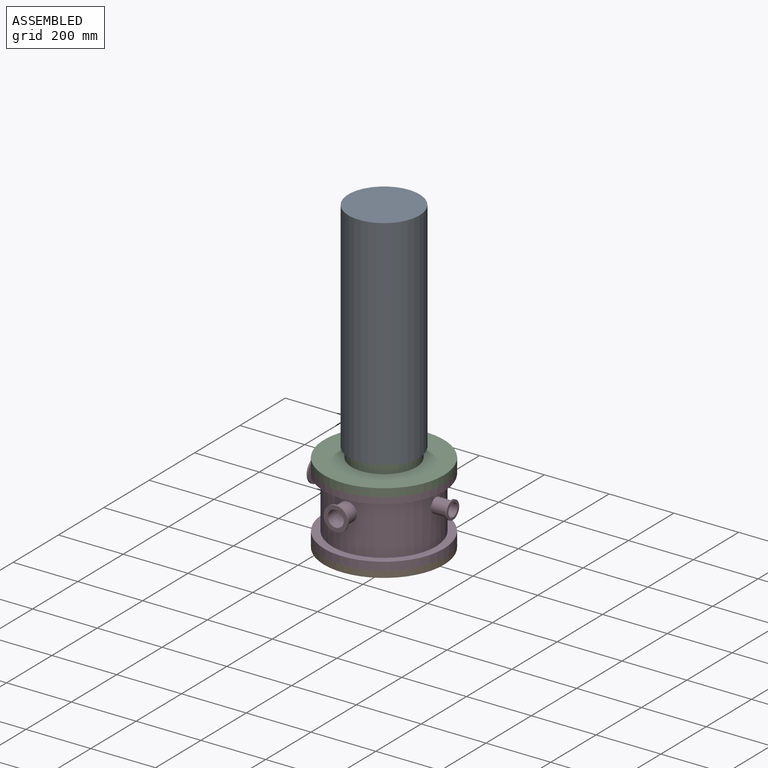
[diagram: assembled view]
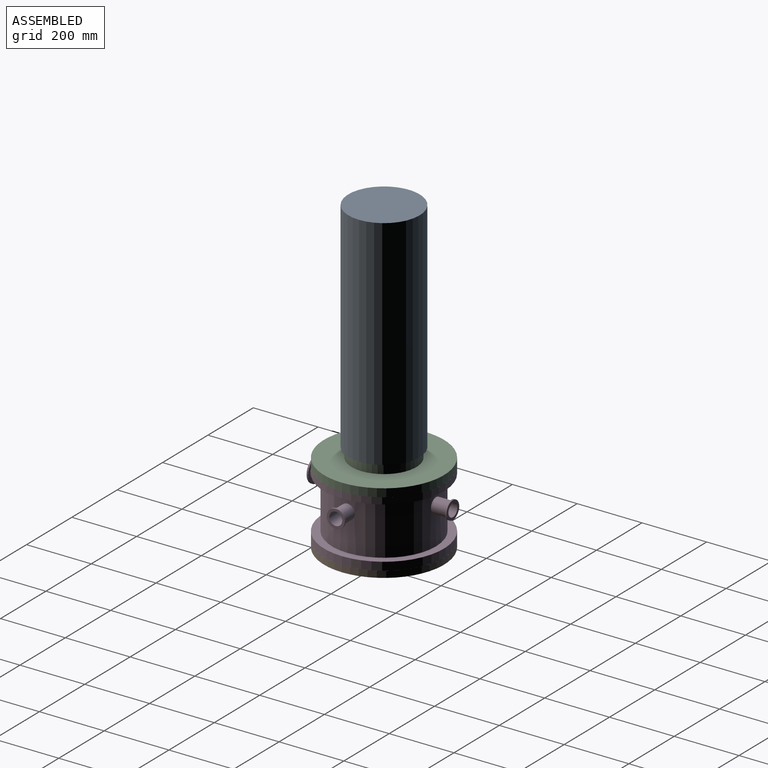
[diagram: assembled view, second angle]
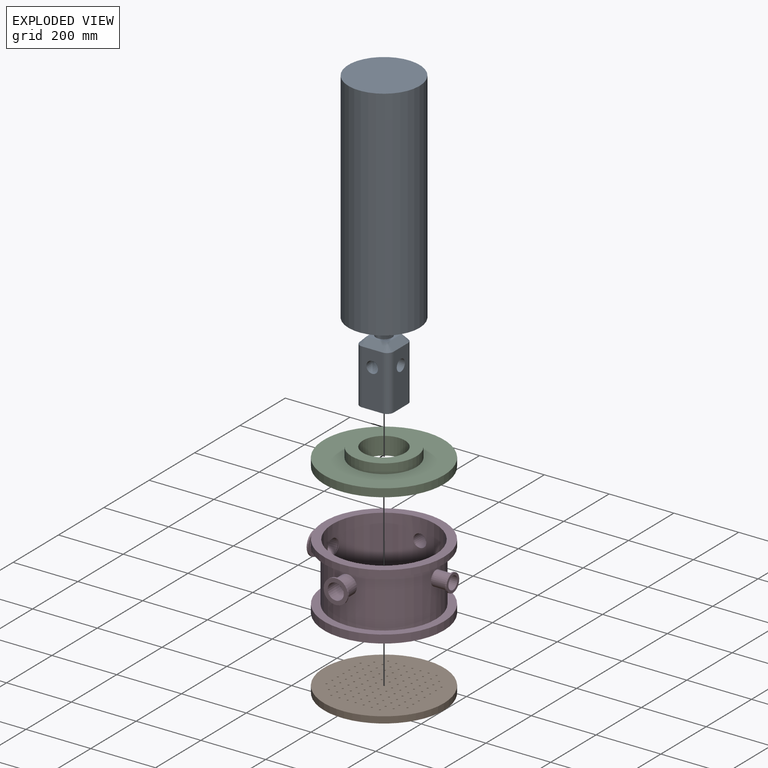
[diagram: exploded view]
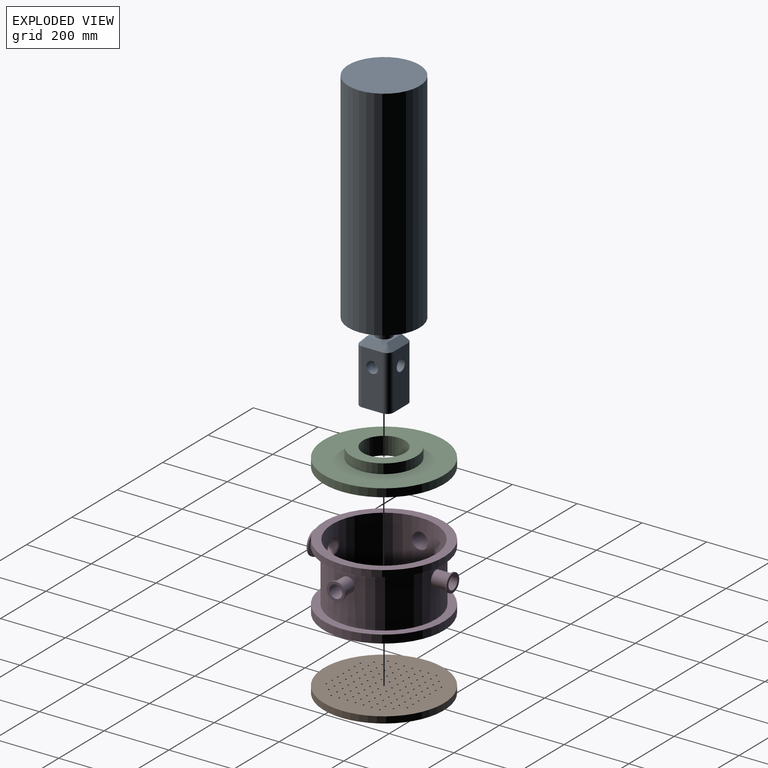
[diagram: exploded view, second angle]
ASSEMBLY  parts=4 mates=3
PART A: 28 faces, bbox 220x220x915 mm
  f0: cylinder r=18mm len=52mm, axis (0,1,0), area 4585.1mm2, adj f6,f12,f13
  f1: cylinder r=20mm len=170mm, axis (0,0,1), area 5340.7mm2, adj f2,f8,f9,f14
  f2: plane 170x64mm, normal (0,-1,0), area 9862.1mm2, adj f1,f3,f9,f11,f15
  f3: cylinder r=20mm len=170mm, axis (0,0,1), area 5340.7mm2, adj f2,f4,f9,f17
  f4: plane 170x64mm, normal (-1,0,0), area 9862.1mm2, adj f3,f5,f9,f13,f19
  f5: cylinder r=20mm len=170mm, axis (0,0,1), area 5340.7mm2, adj f4,f6,f9,f21
  f6: plane 170x64mm, normal (0,1,0), area 9862.1mm2, adj f0,f5,f7,f9,f20
  f7: cylinder r=20mm len=170mm, axis (0,0,1), area 5340.7mm2, adj f6,f8,f9,f18
  f8: plane 170x64mm, normal (1,0,0), area 9862.1mm2, adj f1,f7,f9,f12,f16
  f9: plane 104x104mm, normal (0,0,-1), area 10472.6mm2, adj f1,f2,f3,f4,f5,f6,f7,f8
  f10: plane 64x64mm, normal (0,0,1), area 2132.5mm2, adj f15,f16,f19,f20,f27
  f11: cylinder r=18mm len=52mm, axis (0,1,0), area 4585.1mm2, adj f2,f12,f13
  f12: cylinder r=18mm len=52mm, axis (1,0,0), area 4585.1mm2, adj f0,f8,f11
  f13: cylinder r=18mm len=52mm, axis (1,0,0), area 4585.1mm2, adj f0,f4,f11
  f14: cone r=20mm half-angle=45deg, axis (0,0,-1), area 444.3mm2, adj f1,f15,f16
  f15: plane 64x20mm, normal (0,-0.71,0.71), area 1810.2mm2, adj f2,f10,f14,f17
  f16: plane 64x20mm, normal (0.71,0,0.71), area 1810.2mm2, adj f8,f10,f14,f18
  f17: cone r=20mm half-angle=45deg, axis (0,0,-1), area 444.3mm2, adj f3,f15,f19
  f18: cone r=20mm half-angle=45deg, axis (0,0,-1), area 444.3mm2, adj f7,f16,f20
  f19: plane 64x20mm, normal (-0.71,0,0.71), area 1810.2mm2, adj f4,f10,f17,f21
  f20: plane 64x20mm, normal (0,0.71,0.71), area 1810.2mm2, adj f6,f10,f18,f21
  f21: cone r=20mm half-angle=45deg, axis (0,0,-1), area 444.3mm2, adj f5,f19,f20
  f22: cylinder r=110mm len=675mm, axis (0,0,-1), area 466526.5mm2, adj f23,f24
  f23: plane 220x220mm, normal (0,0,1), area 38013.3mm2, adj f22
  f24: plane 220x220mm, normal (0,0,-1), area 26703.5mm2, adj f22,f25
  f25: cylinder r=60mm len=120mm, axis (0,0,1), area 3769.9mm2, adj f24,f26
  f26: plane 120x120mm, normal (0,0,-1), area 9346.2mm2, adj f25,f27
  f27: cylinder r=25mm len=50mm, axis (0,0,1), area 6283.2mm2, adj f10,f26
PART B: 221 faces, bbox 370x370x20 mm
  f0: cylinder r=185mm len=370mm, axis (0,0,-1), area 23247.8mm2, adj f1,f2
  f1: plane 370x370mm, normal (0,0,1), area 105380.8mm2, adj f0,f3,f5,f7,f9,f11,f13,f15
  f2: plane 370x370mm, normal (0,0,-1), area 107521mm2, adj f0
  f3: cylinder r=2.5mm len=5mm, axis (0,0,1), area 78.5mm2, adj f1,f4
  f4: plane 5x5mm, normal (0,0,1), area 19.6mm2, adj f3
  f5: cylinder r=2.5mm len=5mm, axis (0,0,1), area 78.5mm2, adj f1,f6
  f6: plane 5x5mm, normal (0,0,1), area 19.6mm2, adj f5
  f7: cylinder r=2.5mm len=5mm, axis (0,0,1), area 78.5mm2, adj f1,f8
  f8: plane 5x5mm, normal (0,0,1), area 19.6mm2, adj f7
  f9: cylinder r=2.5mm len=5mm, axis (0,0,1), area 78.5mm2, adj f1,f10
  f10: plane 5x5mm, normal (0,0,1), area 19.6mm2, adj f9
  f11: cylinder r=2.5mm len=5mm, axis (0,0,1), area 78.5mm2, adj f1,f12
  f12: plane 5x5mm, normal (0,0,1), area 19.6mm2, adj f11
  f13: cylinder r=2.5mm len=5mm, axis (0,0,1), area 78.5mm2, adj f1,f14
  f14: plane 5x5mm, normal (0,0,1), area 19.6mm2, adj f13
  f15: cylinder r=2.5mm len=5mm, axis (0,0,1), area 78.5mm2, adj f1,f16
  f16: plane 5x5mm, normal (0,0,1), area 19.6mm2, adj f15
  f17: cylinder r=2.5mm len=5mm, axis (0,0,1), area 78.5mm2, adj f1,f18
  f18: plane 5x5mm, normal (0,0,1), area 19.6mm2, adj f17
  f19: cylinder r=2.5mm len=5mm, axis (0,0,1), area 78.5mm2, adj f1,f20
  f20: plane 5x5mm, normal (0,0,1), area 19.6mm2, adj f19
  f21: cylinder r=2.5mm len=5mm, axis (0,0,1), area 78.5mm2, adj f1,f22
  f22: plane 5x5mm, normal (0,0,1), area 19.6mm2, adj f21
  f23: cylinder r=2.5mm len=5mm, axis (0,0,1), area 78.5mm2, adj f1,f24
  f24: plane 5x5mm, normal (0,0,1), area 19.6mm2, adj f23
  f25: cylinder r=2.5mm len=5mm, axis (0,0,1), area 78.5mm2, adj f1,f26
  f26: plane 5x5mm, normal (0,0,1), area 19.6mm2, adj f25
  f27: cylinder r=2.5mm len=5mm, axis (0,0,1), area 78.5mm2, adj f1,f28
  f28: plane 5x5mm, normal (0,0,1), area 19.6mm2, adj f27
  f29: cylinder r=2.5mm len=5mm, axis (0,0,1), area 78.5mm2, adj f1,f30
  f30: plane 5x5mm, normal (0,0,1), area 19.6mm2, adj f29
  f31: cylinder r=2.5mm len=5mm, axis (0,0,1), area 78.5mm2, adj f1,f32
  f32: plane 5x5mm, normal (0,0,1), area 19.6mm2, adj f31
  f33: cylinder r=2.5mm len=5mm, axis (0,0,1), area 78.5mm2, adj f1,f34
  f34: plane 5x5mm, normal (0,0,1), area 19.6mm2, adj f33
  f35: cylinder r=2.5mm len=5mm, axis (0,0,1), area 78.5mm2, adj f1,f36
  f36: plane 5x5mm, normal (0,0,1), area 19.6mm2, adj f35
  f37: cylinder r=2.5mm len=5mm, axis (0,0,1), area 78.5mm2, adj f1,f38
  f38: plane 5x5mm, normal (0,0,1), area 19.6mm2, adj f37
  f39: cylinder r=2.5mm len=5mm, axis (0,0,1), area 78.5mm2, adj f1,f40
  f40: plane 5x5mm, normal (0,0,1), area 19.6mm2, adj f39
  f41: cylinder r=2.5mm len=5mm, axis (0,0,1), area 78.5mm2, adj f1,f42
  f42: plane 5x5mm, normal (0,0,1), area 19.6mm2, adj f41
  f43: cylinder r=2.5mm len=5mm, axis (0,0,1), area 78.5mm2, adj f1,f44
  f44: plane 5x5mm, normal (0,0,1), area 19.6mm2, adj f43
  f45: cylinder r=2.5mm len=5mm, axis (0,0,1), area 78.5mm2, adj f1,f46
  f46: plane 5x5mm, normal (0,0,1), area 19.6mm2, adj f45
  f47: cylinder r=2.5mm len=5mm, axis (0,0,1), area 78.5mm2, adj f1,f48
  f48: plane 5x5mm, normal (0,0,1), area 19.6mm2, adj f47
  f49: cylinder r=2.5mm len=5mm, axis (0,0,1), area 78.5mm2, adj f1,f50
  f50: plane 5x5mm, normal (0,0,1), area 19.6mm2, adj f49
  f51: cylinder r=2.5mm len=5mm, axis (0,0,1), area 78.5mm2, adj f1,f52
  f52: plane 5x5mm, normal (0,0,1), area 19.6mm2, adj f51
  f53: cylinder r=2.5mm len=5mm, axis (0,0,1), area 78.5mm2, adj f1,f54
  f54: plane 5x5mm, normal (0,0,1), area 19.6mm2, adj f53
  f55: cylinder r=2.5mm len=5mm, axis (0,0,1), area 78.5mm2, adj f1,f56
  f56: plane 5x5mm, normal (0,0,1), area 19.6mm2, adj f55
  f57: cylinder r=2.5mm len=5mm, axis (0,0,1), area 78.5mm2, adj f1,f58
  f58: plane 5x5mm, normal (0,0,1), area 19.6mm2, adj f57
  f59: cylinder r=2.5mm len=5mm, axis (0,0,1), area 78.5mm2, adj f1,f60
  f60: plane 5x5mm, normal (0,0,1), area 19.6mm2, adj f59
  f61: cylinder r=2.5mm len=5mm, axis (0,0,1), area 78.5mm2, adj f1,f62
  f62: plane 5x5mm, normal (0,0,1), area 19.6mm2, adj f61
  f63: cylinder r=2.5mm len=5mm, axis (0,0,1), area 78.5mm2, adj f1,f64
  f64: plane 5x5mm, normal (0,0,1), area 19.6mm2, adj f63
  f65: cylinder r=2.5mm len=5mm, axis (0,0,1), area 78.5mm2, adj f1,f66
  f66: plane 5x5mm, normal (0,0,1), area 19.6mm2, adj f65
  f67: cylinder r=2.5mm len=5mm, axis (0,0,1), area 78.5mm2, adj f1,f68
  f68: plane 5x5mm, normal (0,0,1), area 19.6mm2, adj f67
  f69: cylinder r=2.5mm len=5mm, axis (0,0,1), area 78.5mm2, adj f1,f70
  f70: plane 5x5mm, normal (0,0,1), area 19.6mm2, adj f69
  f71: cylinder r=2.5mm len=5mm, axis (0,0,1), area 78.5mm2, adj f1,f72
  f72: plane 5x5mm, normal (0,0,1), area 19.6mm2, adj f71
  f73: cylinder r=2.5mm len=5mm, axis (0,0,1), area 78.5mm2, adj f1,f74
  f74: plane 5x5mm, normal (0,0,1), area 19.6mm2, adj f73
  f75: cylinder r=2.5mm len=5mm, axis (0,0,1), area 78.5mm2, adj f1,f76
  f76: plane 5x5mm, normal (0,0,1), area 19.6mm2, adj f75
  f77: cylinder r=2.5mm len=5mm, axis (0,0,1), area 78.5mm2, adj f1,f78
  f78: plane 5x5mm, normal (0,0,1), area 19.6mm2, adj f77
  f79: cylinder r=2.5mm len=5mm, axis (0,0,1), area 78.5mm2, adj f1,f80
  f80: plane 5x5mm, normal (0,0,1), area 19.6mm2, adj f79
  f81: cylinder r=2.5mm len=5mm, axis (0,0,1), area 78.5mm2, adj f1,f82
  f82: plane 5x5mm, normal (0,0,1), area 19.6mm2, adj f81
  f83: cylinder r=2.5mm len=5mm, axis (0,0,1), area 78.5mm2, adj f1,f84
  f84: plane 5x5mm, normal (0,0,1), area 19.6mm2, adj f83
  f85: cylinder r=2.5mm len=5mm, axis (0,0,1), area 78.5mm2, adj f1,f86
  f86: plane 5x5mm, normal (0,0,1), area 19.6mm2, adj f85
  f87: cylinder r=2.5mm len=5mm, axis (0,0,1), area 78.5mm2, adj f1,f88
  f88: plane 5x5mm, normal (0,0,1), area 19.6mm2, adj f87
  f89: cylinder r=2.5mm len=5mm, axis (0,0,1), area 78.5mm2, adj f1,f90
  f90: plane 5x5mm, normal (0,0,1), area 19.6mm2, adj f89
  f91: cylinder r=2.5mm len=5mm, axis (0,0,1), area 78.5mm2, adj f1,f92
  f92: plane 5x5mm, normal (0,0,1), area 19.6mm2, adj f91
  f93: cylinder r=2.5mm len=5mm, axis (0,0,1), area 78.5mm2, adj f1,f94
  f94: plane 5x5mm, normal (0,0,1), area 19.6mm2, adj f93
  f95: cylinder r=2.5mm len=5mm, axis (0,0,1), area 78.5mm2, adj f1,f96
  f96: plane 5x5mm, normal (0,0,1), area 19.6mm2, adj f95
  f97: cylinder r=2.5mm len=5mm, axis (0,0,1), area 78.5mm2, adj f1,f98
  f98: plane 5x5mm, normal (0,0,1), area 19.6mm2, adj f97
  f99: cylinder r=2.5mm len=5mm, axis (0,0,1), area 78.5mm2, adj f1,f100
  f100: plane 5x5mm, normal (0,0,1), area 19.6mm2, adj f99
  f101: cylinder r=2.5mm len=5mm, axis (0,0,1), area 78.5mm2, adj f1,f102
  f102: plane 5x5mm, normal (0,0,1), area 19.6mm2, adj f101
  f103: cylinder r=2.5mm len=5mm, axis (0,0,1), area 78.5mm2, adj f1,f104
  f104: plane 5x5mm, normal (0,0,1), area 19.6mm2, adj f103
  f105: cylinder r=2.5mm len=5mm, axis (0,0,1), area 78.5mm2, adj f1,f106
  f106: plane 5x5mm, normal (0,0,1), area 19.6mm2, adj f105
  f107: cylinder r=2.5mm len=5mm, axis (0,0,1), area 78.5mm2, adj f1,f108
  f108: plane 5x5mm, normal (0,0,1), area 19.6mm2, adj f107
  f109: cylinder r=2.5mm len=5mm, axis (0,0,1), area 78.5mm2, adj f1,f110
  f110: plane 5x5mm, normal (0,0,1), area 19.6mm2, adj f109
  f111: cylinder r=2.5mm len=5mm, axis (0,0,1), area 78.5mm2, adj f1,f112
  f112: plane 5x5mm, normal (0,0,1), area 19.6mm2, adj f111
  f113: cylinder r=2.5mm len=5mm, axis (0,0,1), area 78.5mm2, adj f1,f114
  f114: plane 5x5mm, normal (0,0,1), area 19.6mm2, adj f113
  f115: cylinder r=2.5mm len=5mm, axis (0,0,1), area 78.5mm2, adj f1,f116
  f116: plane 5x5mm, normal (0,0,1), area 19.6mm2, adj f115
  f117: cylinder r=2.5mm len=5mm, axis (0,0,1), area 78.5mm2, adj f1,f118
  f118: plane 5x5mm, normal (0,0,1), area 19.6mm2, adj f117
  f119: cylinder r=2.5mm len=5mm, axis (0,0,1), area 78.5mm2, adj f1,f120
  f120: plane 5x5mm, normal (0,0,1), area 19.6mm2, adj f119
  f121: cylinder r=2.5mm len=5mm, axis (0,0,1), area 78.5mm2, adj f1,f122
  f122: plane 5x5mm, normal (0,0,1), area 19.6mm2, adj f121
  f123: cylinder r=2.5mm len=5mm, axis (0,0,1), area 78.5mm2, adj f1,f124
  f124: plane 5x5mm, normal (0,0,1), area 19.6mm2, adj f123
  f125: cylinder r=2.5mm len=5mm, axis (0,0,1), area 78.5mm2, adj f1,f126
  f126: plane 5x5mm, normal (0,0,1), area 19.6mm2, adj f125
  f127: cylinder r=2.5mm len=5mm, axis (0,0,1), area 78.5mm2, adj f1,f128
  f128: plane 5x5mm, normal (0,0,1), area 19.6mm2, adj f127
  f129: cylinder r=2.5mm len=5mm, axis (0,0,1), area 78.5mm2, adj f1,f130
  f130: plane 5x5mm, normal (0,0,1), area 19.6mm2, adj f129
  f131: cylinder r=2.5mm len=5mm, axis (0,0,1), area 78.5mm2, adj f1,f132
  f132: plane 5x5mm, normal (0,0,1), area 19.6mm2, adj f131
  f133: cylinder r=2.5mm len=5mm, axis (0,0,1), area 78.5mm2, adj f1,f134
  f134: plane 5x5mm, normal (0,0,1), area 19.6mm2, adj f133
  f135: cylinder r=2.5mm len=5mm, axis (0,0,1), area 78.5mm2, adj f1,f136
  f136: plane 5x5mm, normal (0,0,1), area 19.6mm2, adj f135
  f137: cylinder r=2.5mm len=5mm, axis (0,0,1), area 78.5mm2, adj f1,f138
  f138: plane 5x5mm, normal (0,0,1), area 19.6mm2, adj f137
  f139: cylinder r=2.5mm len=5mm, axis (0,0,1), area 78.5mm2, adj f1,f140
  f140: plane 5x5mm, normal (0,0,1), area 19.6mm2, adj f139
  f141: cylinder r=2.5mm len=5mm, axis (0,0,1), area 78.5mm2, adj f1,f142
  f142: plane 5x5mm, normal (0,0,1), area 19.6mm2, adj f141
  f143: cylinder r=2.5mm len=5mm, axis (0,0,1), area 78.5mm2, adj f1,f144
  f144: plane 5x5mm, normal (0,0,1), area 19.6mm2, adj f143
  f145: cylinder r=2.5mm len=5mm, axis (0,0,1), area 78.5mm2, adj f1,f146
  f146: plane 5x5mm, normal (0,0,1), area 19.6mm2, adj f145
  f147: cylinder r=2.5mm len=5mm, axis (0,0,1), area 78.5mm2, adj f1,f148
  f148: plane 5x5mm, normal (0,0,1), area 19.6mm2, adj f147
  f149: cylinder r=2.5mm len=5mm, axis (0,0,1), area 78.5mm2, adj f1,f150
  f150: plane 5x5mm, normal (0,0,1), area 19.6mm2, adj f149
  f151: cylinder r=2.5mm len=5mm, axis (0,0,1), area 78.5mm2, adj f1,f152
  f152: plane 5x5mm, normal (0,0,1), area 19.6mm2, adj f151
  f153: cylinder r=2.5mm len=5mm, axis (0,0,1), area 78.5mm2, adj f1,f154
  f154: plane 5x5mm, normal (0,0,1), area 19.6mm2, adj f153
  f155: cylinder r=2.5mm len=5mm, axis (0,0,1), area 78.5mm2, adj f1,f156
  f156: plane 5x5mm, normal (0,0,1), area 19.6mm2, adj f155
  f157: cylinder r=2.5mm len=5mm, axis (0,0,1), area 78.5mm2, adj f1,f158
  f158: plane 5x5mm, normal (0,0,1), area 19.6mm2, adj f157
  f159: cylinder r=2.5mm len=5mm, axis (0,0,1), area 78.5mm2, adj f1,f160
  f160: plane 5x5mm, normal (0,0,1), area 19.6mm2, adj f159
  f161: cylinder r=2.5mm len=5mm, axis (0,0,1), area 78.5mm2, adj f1,f162
  f162: plane 5x5mm, normal (0,0,1), area 19.6mm2, adj f161
  f163: cylinder r=2.5mm len=5mm, axis (0,0,1), area 78.5mm2, adj f1,f164
  f164: plane 5x5mm, normal (0,0,1), area 19.6mm2, adj f163
  f165: cylinder r=2.5mm len=5mm, axis (0,0,1), area 78.5mm2, adj f1,f166
  f166: plane 5x5mm, normal (0,0,1), area 19.6mm2, adj f165
  f167: cylinder r=2.5mm len=5mm, axis (0,0,1), area 78.5mm2, adj f1,f168
  f168: plane 5x5mm, normal (0,0,1), area 19.6mm2, adj f167
  f169: cylinder r=2.5mm len=5mm, axis (0,0,1), area 78.5mm2, adj f1,f170
  f170: plane 5x5mm, normal (0,0,1), area 19.6mm2, adj f169
  f171: cylinder r=2.5mm len=5mm, axis (0,0,1), area 78.5mm2, adj f1,f172
  f172: plane 5x5mm, normal (0,0,1), area 19.6mm2, adj f171
  f173: cylinder r=2.5mm len=5mm, axis (0,0,1), area 78.5mm2, adj f1,f174
  f174: plane 5x5mm, normal (0,0,1), area 19.6mm2, adj f173
  f175: cylinder r=2.5mm len=5mm, axis (0,0,1), area 78.5mm2, adj f1,f176
  f176: plane 5x5mm, normal (0,0,1), area 19.6mm2, adj f175
  f177: cylinder r=2.5mm len=5mm, axis (0,0,1), area 78.5mm2, adj f1,f178
  f178: plane 5x5mm, normal (0,0,1), area 19.6mm2, adj f177
  f179: cylinder r=2.5mm len=5mm, axis (0,0,1), area 78.5mm2, adj f1,f180
  f180: plane 5x5mm, normal (0,0,1), area 19.6mm2, adj f179
  f181: cylinder r=2.5mm len=5mm, axis (0,0,1), area 78.5mm2, adj f1,f182
  f182: plane 5x5mm, normal (0,0,1), area 19.6mm2, adj f181
  f183: cylinder r=2.5mm len=5mm, axis (0,0,1), area 78.5mm2, adj f1,f184
  f184: plane 5x5mm, normal (0,0,1), area 19.6mm2, adj f183
  f185: cylinder r=2.5mm len=5mm, axis (0,0,1), area 78.5mm2, adj f1,f186
  f186: plane 5x5mm, normal (0,0,1), area 19.6mm2, adj f185
  f187: cylinder r=2.5mm len=5mm, axis (0,0,1), area 78.5mm2, adj f1,f188
  f188: plane 5x5mm, normal (0,0,1), area 19.6mm2, adj f187
  f189: cylinder r=2.5mm len=5mm, axis (0,0,1), area 78.5mm2, adj f1,f190
  f190: plane 5x5mm, normal (0,0,1), area 19.6mm2, adj f189
  f191: cylinder r=2.5mm len=5mm, axis (0,0,1), area 78.5mm2, adj f1,f192
  f192: plane 5x5mm, normal (0,0,1), area 19.6mm2, adj f191
  f193: cylinder r=2.5mm len=5mm, axis (0,0,1), area 78.5mm2, adj f1,f194
  f194: plane 5x5mm, normal (0,0,1), area 19.6mm2, adj f193
  f195: cylinder r=2.5mm len=5mm, axis (0,0,1), area 78.5mm2, adj f1,f196
  f196: plane 5x5mm, normal (0,0,1), area 19.6mm2, adj f195
  f197: cylinder r=2.5mm len=5mm, axis (0,0,1), area 78.5mm2, adj f1,f198
  f198: plane 5x5mm, normal (0,0,1), area 19.6mm2, adj f197
  f199: cylinder r=2.5mm len=5mm, axis (0,0,1), area 78.5mm2, adj f1,f200
  f200: plane 5x5mm, normal (0,0,1), area 19.6mm2, adj f199
  f201: cylinder r=2.5mm len=5mm, axis (0,0,1), area 78.5mm2, adj f1,f202
  f202: plane 5x5mm, normal (0,0,1), area 19.6mm2, adj f201
  f203: cylinder r=2.5mm len=5mm, axis (0,0,1), area 78.5mm2, adj f1,f204
  f204: plane 5x5mm, normal (0,0,1), area 19.6mm2, adj f203
  f205: cylinder r=2.5mm len=5mm, axis (0,0,1), area 78.5mm2, adj f1,f206
  f206: plane 5x5mm, normal (0,0,1), area 19.6mm2, adj f205
  f207: cylinder r=2.5mm len=5mm, axis (0,0,1), area 78.5mm2, adj f1,f208
  f208: plane 5x5mm, normal (0,0,1), area 19.6mm2, adj f207
  f209: cylinder r=2.5mm len=5mm, axis (0,0,1), area 78.5mm2, adj f1,f210
  f210: plane 5x5mm, normal (0,0,1), area 19.6mm2, adj f209
  f211: cylinder r=2.5mm len=5mm, axis (0,0,1), area 78.5mm2, adj f1,f212
  f212: plane 5x5mm, normal (0,0,1), area 19.6mm2, adj f211
  f213: cylinder r=2.5mm len=5mm, axis (0,0,1), area 78.5mm2, adj f1,f214
  f214: plane 5x5mm, normal (0,0,1), area 19.6mm2, adj f213
  f215: cylinder r=2.5mm len=5mm, axis (0,0,1), area 78.5mm2, adj f1,f216
  f216: plane 5x5mm, normal (0,0,1), area 19.6mm2, adj f215
  f217: cylinder r=2.5mm len=5mm, axis (0,0,1), area 78.5mm2, adj f1,f218
  f218: plane 5x5mm, normal (0,0,1), area 19.6mm2, adj f217
  f219: cylinder r=2.5mm len=5mm, axis (0,0,1), area 78.5mm2, adj f1,f220
  f220: plane 5x5mm, normal (0,0,1), area 19.6mm2, adj f219
PART C: 6 faces, bbox 370x370x55 mm
  f0: cylinder r=185mm len=370mm, axis (0,0,-1), area 29059.7mm2, adj f1,f2
  f1: plane 370x370mm, normal (0,0,1), area 76105.1mm2, adj f0,f4
  f2: plane 370x370mm, normal (0,0,-1), area 94247.8mm2, adj f0,f3
  f3: cylinder r=65mm len=130mm, axis (0,0,-1), area 22462.4mm2, adj f2,f5
  f4: cylinder r=100mm len=200mm, axis (0,0,-1), area 18849.6mm2, adj f1,f5
  f5: plane 200x200mm, normal (0,0,1), area 18142.7mm2, adj f3,f4
PART D: 36 faces, bbox 425.5x425.5x205 mm
  f0: cylinder r=158.75mm len=317.5mm, axis (0,0,-1), area 198024.9mm2, adj f8,f9,f13,f19,f25,f31
  f1: cylinder r=22.5mm len=47mm, axis (0,-1,0), area 6644.5mm2, adj f2,f30,f33,f35
  f2: cylinder r=160.75mm len=321.5mm, axis (0,0,-1), area 155004.2mm2, adj f1,f3,f4,f5,f7,f11,f12,f13
  f3: cylinder r=22.5mm len=47mm, axis (-1,0,0), area 6644.3mm2, adj f2,f24,f27,f29
  f4: cylinder r=28.75mm len=57.5mm, axis (1,0,0), area 8490.2mm2, adj f2,f18,f21,f23
  f5: cylinder r=28.75mm len=57.5mm, axis (0,1,0), area 8490.2mm2, adj f2,f12,f15,f17
  f6: cylinder r=185mm len=370mm, axis (0,0,-1), area 29059.7mm2, adj f7,f8
  f7: plane 370x370mm, normal (0,0,1), area 26340.5mm2, adj f2,f6
  f8: plane 370x370mm, normal (0,0,-1), area 28348mm2, adj f0,f6
  f9: plane 370x370mm, normal (0,0,1), area 28348mm2, adj f0,f10
  f10: cylinder r=185mm len=370mm, axis (0,0,1), area 23247.8mm2, adj f9,f11
  f11: plane 370x370mm, normal (0,0,-1), area 26340.5mm2, adj f2,f10
  f12: plane 57.22x25.92mm, normal (0,1,0), area 295.3mm2, adj f2,f5,f13
  f13: cylinder r=25mm len=55.96mm, axis (0,1,0), area 8484.1mm2, adj f0,f2,f12,f14,f15
  f14: plane 75x75mm, normal (0,-1,0), area 2454.4mm2, adj f13,f16
  f15: plane 57.22x25.92mm, normal (0,1,0), area 295.3mm2, adj f2,f5,f13
  f16: cylinder r=37.5mm len=75mm, axis (0,-1,0), area 1178.1mm2, adj f14,f17
  f17: plane 75x75mm, normal (0,1,0), area 1821.1mm2, adj f5,f16
  f18: plane 57.22x25.92mm, normal (1,0,0), area 295.3mm2, adj f2,f4,f19
  f19: cylinder r=25mm len=55.96mm, axis (1,0,0), area 8483.9mm2, adj f0,f2,f18,f20,f21
  f20: plane 75x75mm, normal (-1,0,0), area 2454.4mm2, adj f19,f22
  f21: plane 57.22x25.92mm, normal (1,0,0), area 295.3mm2, adj f2,f4,f19
  f22: cylinder r=37.5mm len=75mm, axis (-1,0,0), area 1178.1mm2, adj f20,f23
  f23: plane 75x75mm, normal (1,0,0), area 1821.1mm2, adj f4,f22
  f24: plane 44.64x19.67mm, normal (-1,0,0), area 152.7mm2, adj f2,f3,f25
  f25: cylinder r=20mm len=55.24mm, axis (-1,0,0), area 6786.6mm2, adj f0,f2,f24,f26,f27
  f26: plane 56x56mm, normal (1,0,0), area 1206.4mm2, adj f25,f28
  f27: plane 44.64x19.67mm, normal (-1,0,0), area 152.7mm2, adj f2,f3,f25
  f28: cylinder r=28mm len=56mm, axis (1,0,0), area 879.6mm2, adj f26,f29
  f29: plane 56x56mm, normal (-1,0,0), area 872.6mm2, adj f3,f28
  f30: plane 44.64x19.67mm, normal (0,-1,0), area 152.7mm2, adj f1,f2,f31
  f31: cylinder r=20mm len=55.24mm, axis (0,-1,0), area 6786.6mm2, adj f0,f2,f30,f32,f33
  f32: plane 56x56mm, normal (0,1,0), area 1206.4mm2, adj f31,f34
  f33: plane 44.64x19.67mm, normal (0,-1,0), area 152.7mm2, adj f1,f2,f31
  f34: cylinder r=28mm len=56mm, axis (0,1,0), area 879.6mm2, adj f32,f35
  f35: plane 56x56mm, normal (0,-1,0), area 872.6mm2, adj f1,f34
PLACE A t=(36.57,69.65,362.96)mm
PLACE B t=(36.57,69.65,82.96)mm
PLACE C t=(36.57,69.65,307.96)mm
PLACE D t=(36.57,69.65,102.96)mm
MATE fastened C.f0 <-> D.f0  axis (0,0,-1) through (36.57,69.65,307.96)mm
MATE fastened C.f0 <-> A.f22  axis (0,0,1) through (36.57,69.65,362.96)mm
MATE fastened B.f0 <-> D.f0  axis (0,0,1) through (36.57,69.65,102.96)mm
